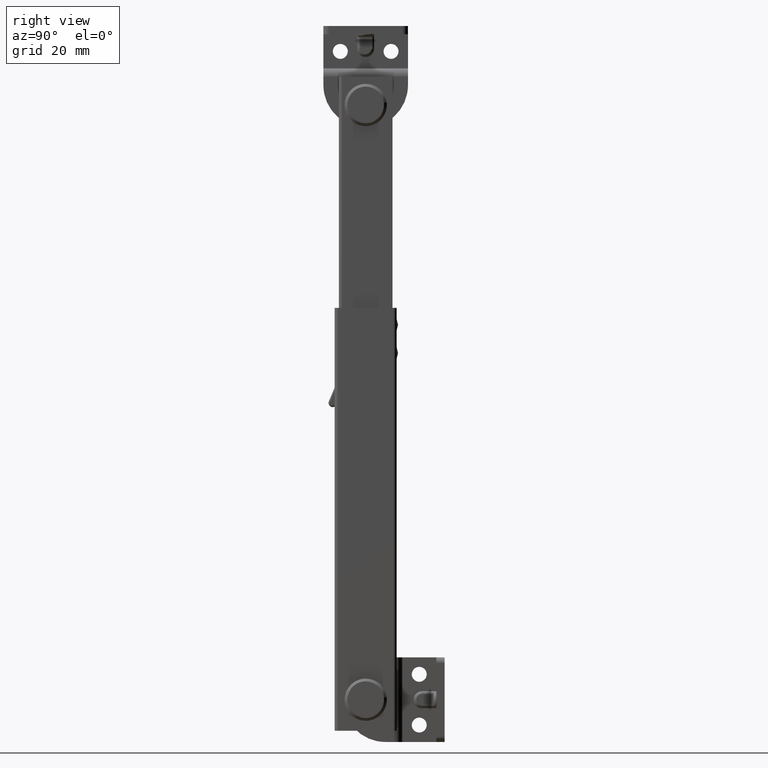
[diagram: clean part render]
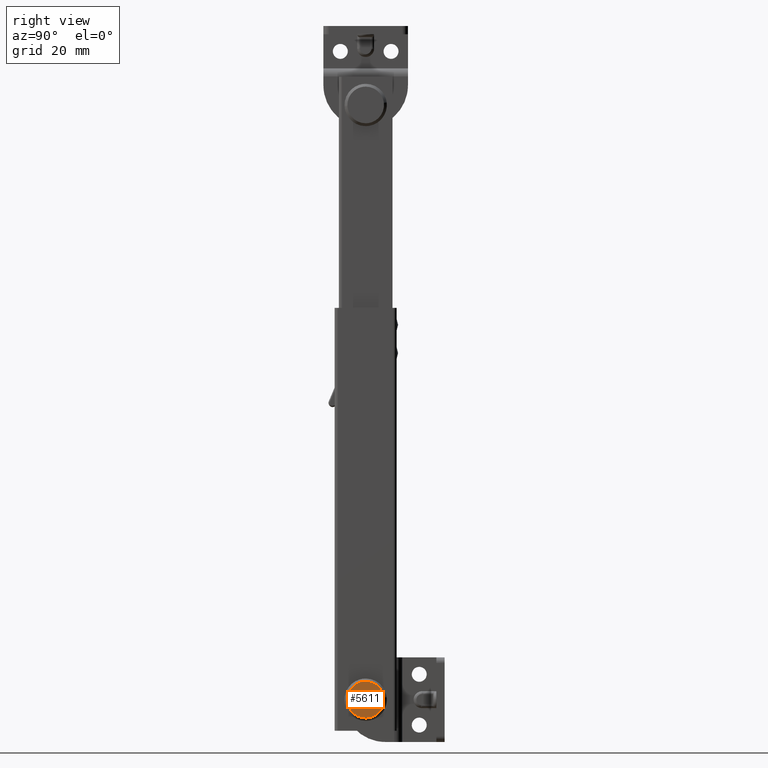
[diagram: same view with one face highlighted and labeled with its STEP entity id]
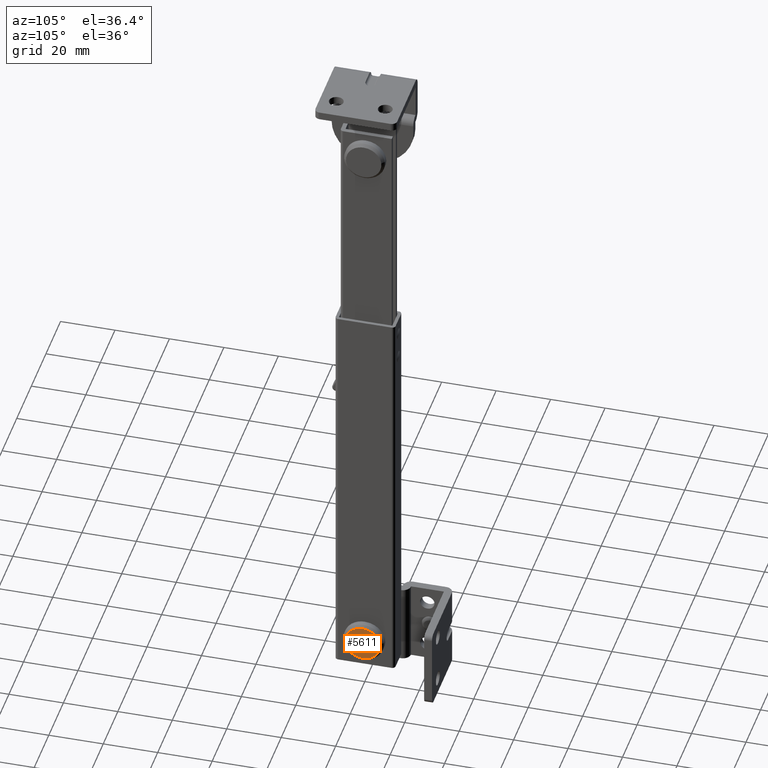
[diagram: same view with one face highlighted and labeled with its STEP entity id]
A machine part, right view. The second image highlights one B-rep face of the part: STEP entity #5611.
A second angle (auxiliary view) of the same face is appended — the face is thin or edge-on in the first view.
In plain terms, the highlighted face is a freeform B-spline surface patch.
Its self-contained STEP definition (entity closure, byte-faithful):
#4861=CARTESIAN_POINT('',(2.999999999204732,6.454561921413916,0.767222531585166));
#4862=VERTEX_POINT('',#4861);
#4863=CARTESIAN_POINT('',(3.0,0.0,-6.500000000000000));
#4864=VERTEX_POINT('',#4863);
#4865=CARTESIAN_POINT('',(2.999999999204733,6.454561921413916,0.767222531585166));
#4866=CARTESIAN_POINT('',(3.000000000000001,6.500000000000000,0.384956784025565));
#4867=CARTESIAN_POINT('',(3.0,6.500000000000000,0.0));
#4868=CARTESIAN_POINT('',(3.000000000000000,6.500000000000000,-6.500000000000000));
#4869=CARTESIAN_POINT('',(3.0,0.0,-6.500000000000000));
#4877=(BOUNDED_CURVE()B_SPLINE_CURVE(2,(#4865,#4866,#4867,#4868,#4869),.UNSPECIFIED.,.F.,.U.)B_SPLINE_CURVE_WITH_KNOTS((3,2,3),(0.229562473189797,0.250000000000000,0.500000000000000),.UNSPECIFIED.)CURVE()GEOMETRIC_REPRESENTATION_ITEM()RATIONAL_B_SPLINE_CURVE((0.956026753549212,0.976055947951894,1.0,0.707106781186547,1.0))REPRESENTATION_ITEM(''));
#4878=EDGE_CURVE('',#4862,#4864,#4877,.T.);
#4880=CARTESIAN_POINT('',(2.999999999343256,-6.487876190092889,-0.396815511999530));
#4881=VERTEX_POINT('',#4880);
#4882=CARTESIAN_POINT('',(3.0,0.0,-6.500000000000000));
#4883=CARTESIAN_POINT('',(3.0,-6.114589425477157,-6.500000000000000));
#4884=CARTESIAN_POINT('',(2.999999999343257,-6.487876190092889,-0.396815511999530));
#4892=(BOUNDED_CURVE()B_SPLINE_CURVE(2,(#4882,#4883,#4884),.UNSPECIFIED.,.F.,.U.)B_SPLINE_CURVE_WITH_KNOTS((3,3),(0.500000000000000,0.739332961976928),.UNSPECIFIED.)CURVE()GEOMETRIC_REPRESENTATION_ITEM()RATIONAL_B_SPLINE_CURVE((1.0,0.719603993593680,0.976072041105170))REPRESENTATION_ITEM(''));
#4893=EDGE_CURVE('',#4864,#4881,#4892,.T.);
#4929=CARTESIAN_POINT('',(3.0,0.0,6.500000000000000));
#4930=VERTEX_POINT('',#4929);
#4931=CARTESIAN_POINT('',(3.0,0.0,6.500000000000000));
#4932=CARTESIAN_POINT('',(3.000000000000000,5.773134407474626,6.500000000000000));
#4933=CARTESIAN_POINT('',(2.999999999204733,6.454561921413916,0.767222531585166));
#4941=(BOUNDED_CURVE()B_SPLINE_CURVE(2,(#4931,#4932,#4933),.UNSPECIFIED.,.F.,.U.)B_SPLINE_CURVE_WITH_KNOTS((3,3),(0.0,0.229562473189797),.UNSPECIFIED.)CURVE()GEOMETRIC_REPRESENTATION_ITEM()RATIONAL_B_SPLINE_CURVE((1.0,0.731050833234654,0.956026753549212))REPRESENTATION_ITEM(''));
#4942=EDGE_CURVE('',#4930,#4862,#4941,.T.);
#4948=CARTESIAN_POINT('',(2.999999999343257,-6.487876190092889,-0.396815511999530));
#4949=CARTESIAN_POINT('',(3.0,-6.500000000000000,-0.198592966437666));
#4950=CARTESIAN_POINT('',(3.0,-6.500000000000000,0.0));
#4951=CARTESIAN_POINT('',(3.000000000000000,-6.500000000000000,6.500000000000000));
#4952=CARTESIAN_POINT('',(3.0,0.0,6.500000000000000));
#4960=(BOUNDED_CURVE()B_SPLINE_CURVE(2,(#4948,#4949,#4950,#4951,#4952),.UNSPECIFIED.,.F.,.U.)B_SPLINE_CURVE_WITH_KNOTS((3,2,3),(0.739332961976927,0.750000000000000,1.0),.UNSPECIFIED.)CURVE()GEOMETRIC_REPRESENTATION_ITEM()RATIONAL_B_SPLINE_CURVE((0.976072041105168,0.987502787592867,1.0,0.707106781186547,1.0))REPRESENTATION_ITEM(''));
#4961=EDGE_CURVE('',#4881,#4930,#4960,.T.);
#5600=CARTESIAN_POINT('',(3.0,-7.149192014647126,-7.149349974803477));
#5601=CARTESIAN_POINT('',(3.0,-7.149192014647126,7.149350323490650));
#5602=CARTESIAN_POINT('',(3.0,7.149231764984729,-7.149349974803477));
#5603=CARTESIAN_POINT('',(3.0,7.149231764984729,7.149350323490650));
#5604=B_SPLINE_SURFACE_WITH_KNOTS('',1,1,((#5600,#5602),(#5601,#5603)),.UNSPECIFIED.,.F.,.F.,.U.,(2,2),(2,2),(0.0,14.298700298294129),(0.0,14.298423779631859),.UNSPECIFIED.);
#5605=ORIENTED_EDGE('',*,*,#4961,.F.);
#5606=ORIENTED_EDGE('',*,*,#4893,.F.);
#5607=ORIENTED_EDGE('',*,*,#4878,.F.);
#5608=ORIENTED_EDGE('',*,*,#4942,.F.);
#5609=EDGE_LOOP('',(#5605,#5606,#5607,#5608));
#5610=FACE_OUTER_BOUND('',#5609,.T.);
#5611=ADVANCED_FACE('',(#5610),#5604,.F.);